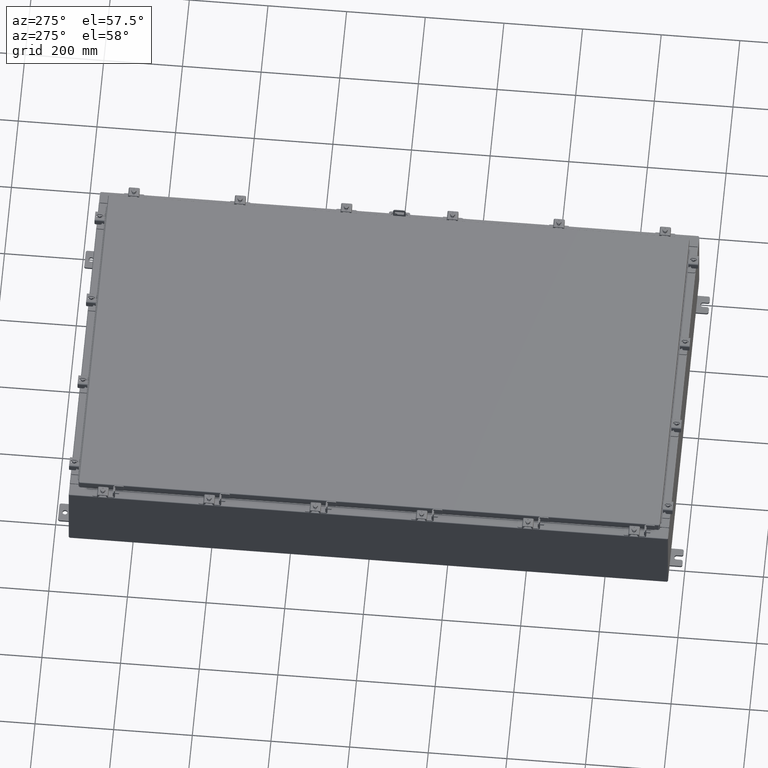
[diagram: clean part render]
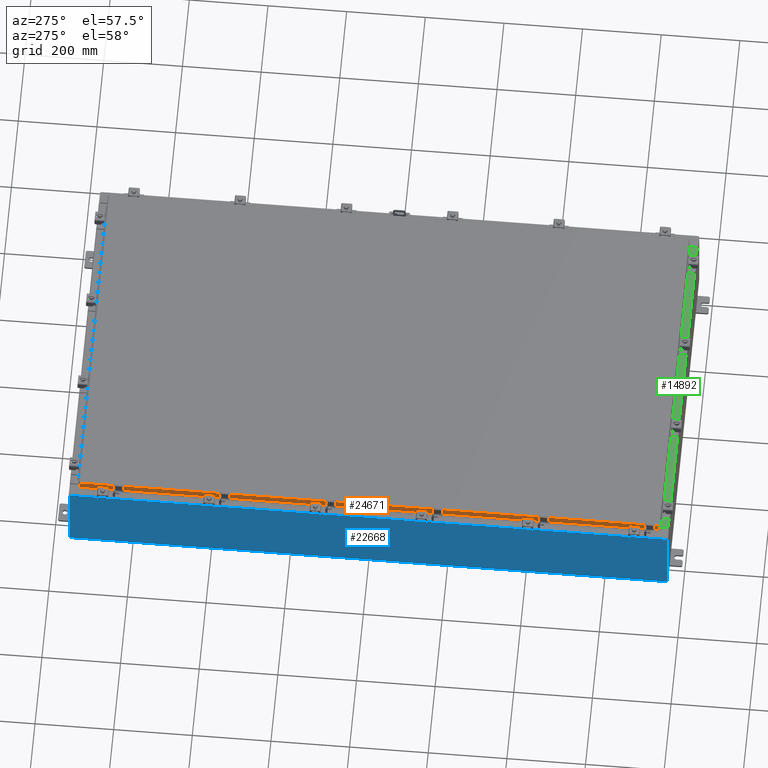
[diagram: same view with three faces highlighted in distinct colors, each labeled with its STEP entity id]
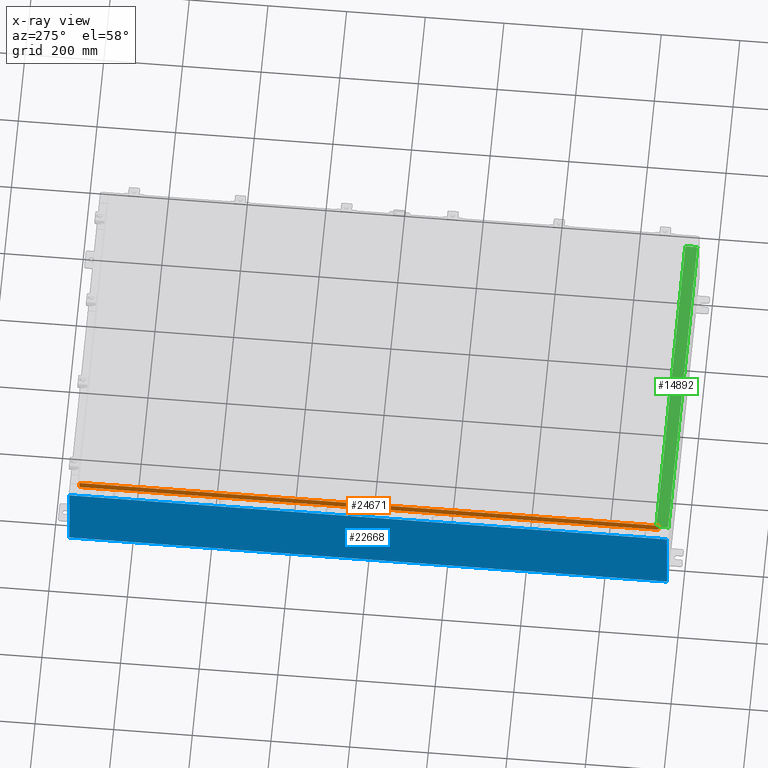
[diagram: x-ray of the same camera — body ghosted, the three highlighted faces saturated]
A machine part, auxiliary view with three faces highlighted in distinct colors.
The next image is the same camera in x-ray (body ghosted, the three faces saturated) — at least one of them is partly hidden behind the body in this view.
Their STEP definitions:

[orange] entity #24671 — the highlighted planar face has unit normal (1, 0, -0).
#21 = DIRECTION ( 'NONE',  ( -2.818880942772360100E-015, 6.982962677686265900E-015, -1.000000000000000000 ) ) ;
#1588 = VECTOR ( 'NONE', #20979, 39.37007874015748100 ) ;
#1671 = EDGE_CURVE ( 'NONE', #1949, #6886, #23423, .T. ) ;
#1757 = DIRECTION ( 'NONE',  ( 3.374737631835139200E-031, -1.000000000000000000, -9.198750492177080800E-046 ) ) ;
#1949 = VERTEX_POINT ( 'NONE', #14503 ) ;
#3059 = VERTEX_POINT ( 'NONE', #3253 ) ;
#3161 = VERTEX_POINT ( 'NONE', #5395 ) ;
#3253 = CARTESIAN_POINT ( 'NONE',  ( -17.07799999999999900, -29.00515786437626500, -0.8499999999999996400 ) ) ;
#3296 = CARTESIAN_POINT ( 'NONE',  ( -17.07799999999999900, -29.09400000000000500, -0.8499999999999996400 ) ) ;
#4090 = PLANE ( 'NONE',  #20455 ) ;
#4351 = VECTOR ( 'NONE', #11782, 39.37007874015748100 ) ;
#5395 = CARTESIAN_POINT ( 'NONE',  ( -17.07799999999999600, 29.00515786437626500, -0.08770000000000007000 ) ) ;
#6219 = DIRECTION ( 'NONE',  ( 1.000000000000000000, 3.374737631835138300E-031, -2.818880942772360100E-015 ) ) ;
#6886 = VERTEX_POINT ( 'NONE', #22488 ) ;
#7268 = LINE ( 'NONE', #23058, #23653 ) ;
#9226 = EDGE_CURVE ( 'NONE', #12845, #3059, #7268, .T. ) ;
#9669 = LINE ( 'NONE', #12368, #19007 ) ;
#9878 = ORIENTED_EDGE ( 'NONE', *, *, #16872, .F. ) ;
#10652 = EDGE_LOOP ( 'NONE', ( #15807, #16085, #9878, #14614, #15200, #24121 ) ) ;
#10927 = LINE ( 'NONE', #23140, #1588 ) ;
#11390 = LINE ( 'NONE', #3296, #4351 ) ;
#11782 = DIRECTION ( 'NONE',  ( 4.379057701015054300E-047, 1.000000000000000000, 1.197190551977018000E-016 ) ) ;
#12030 = CARTESIAN_POINT ( 'NONE',  ( -17.07799999999999900, 29.00515786437627200, -0.8499999999999927600 ) ) ;
#12090 = EDGE_CURVE ( 'NONE', #3161, #22576, #10927, .T. ) ;
#12368 = CARTESIAN_POINT ( 'NONE',  ( -17.07799999999999600, -29.09400000000000500, -0.08770000000000007000 ) ) ;
#12845 = VERTEX_POINT ( 'NONE', #27508 ) ;
#14503 = CARTESIAN_POINT ( 'NONE',  ( -17.07799999999998500, -28.25515786437626500, -0.8500000000000017500 ) ) ;
#14614 = ORIENTED_EDGE ( 'NONE', *, *, #1671, .F. ) ;
#15200 = ORIENTED_EDGE ( 'NONE', *, *, #20308, .F. ) ;
#15785 = CARTESIAN_POINT ( 'NONE',  ( -17.07799999999999900, -29.09400000000000500, -0.8499999999999996400 ) ) ;
#15807 = ORIENTED_EDGE ( 'NONE', *, *, #25294, .F. ) ;
#16085 = ORIENTED_EDGE ( 'NONE', *, *, #12090, .T. ) ;
#16872 = EDGE_CURVE ( 'NONE', #6886, #22576, #11390, .T. ) ;
#17319 = FACE_OUTER_BOUND ( 'NONE', #10652, .T. ) ;
#17682 = VECTOR ( 'NONE', #25455, 39.37007874015748100 ) ;
#17931 = DIRECTION ( 'NONE',  ( 4.379057701015054300E-047, 1.000000000000000000, 1.197190551977018000E-016 ) ) ;
#19007 = VECTOR ( 'NONE', #1757, 39.37007874015748100 ) ;
#20308 = EDGE_CURVE ( 'NONE', #3059, #1949, #21571, .T. ) ;
#20455 = AXIS2_PLACEMENT_3D ( 'NONE', #25374, #6219, #21185 ) ;
#20979 = DIRECTION ( 'NONE',  ( -2.818880942772360100E-015, 6.982962677686265900E-015, -1.000000000000000000 ) ) ;
#21185 = DIRECTION ( 'NONE',  ( -2.818880942772360100E-015, 0.0000000000000000000, -1.000000000000000000 ) ) ;
#21571 = LINE ( 'NONE', #15785, #26583 ) ;
#22488 = CARTESIAN_POINT ( 'NONE',  ( -17.07799999999998500, 28.25515786437626500, -0.8500000000000017500 ) ) ;
#22576 = VERTEX_POINT ( 'NONE', #12030 ) ;
#23058 = CARTESIAN_POINT ( 'NONE',  ( -17.07799999999999600, -29.00515786437627200, -0.07469999999999978000 ) ) ;
#23140 = CARTESIAN_POINT ( 'NONE',  ( -17.07799999999999600, 29.00515786437626500, 2.509435972240157400E-013 ) ) ;
#23423 = LINE ( 'NONE', #25557, #17682 ) ;
#23653 = VECTOR ( 'NONE', #21, 39.37007874015748100 ) ;
#24121 = ORIENTED_EDGE ( 'NONE', *, *, #9226, .F. ) ;
#24671 = ADVANCED_FACE ( 'NONE', ( #17319 ), #4090, .F. ) ;
#25294 = EDGE_CURVE ( 'NONE', #3161, #12845, #9669, .T. ) ;
#25374 = CARTESIAN_POINT ( 'NONE',  ( -17.07799999999999600, -5.763376927648048400E-030, 4.840166239667793400E-014 ) ) ;
#25455 = DIRECTION ( 'NONE',  ( -0.0000000000000000000, 1.000000000000000000, -0.0000000000000000000 ) ) ;
#25557 = CARTESIAN_POINT ( 'NONE',  ( -17.07799999999998500, -28.25515786437626500, -0.8500000000000017500 ) ) ;
#26583 = VECTOR ( 'NONE', #17931, 39.37007874015748100 ) ;
#27508 = CARTESIAN_POINT ( 'NONE',  ( -17.07799999999999600, -29.00515786437627600, -0.08770000000000007000 ) ) ;

[blue] entity #22668 — the highlighted planar face has unit normal (1, 0, 0).
#1116 = FACE_OUTER_BOUND ( 'NONE', #22545, .T. ) ;
#1166 = CARTESIAN_POINT ( 'NONE',  ( -18.00000000000002800, -29.92530000000001100, 7.837599999999999200 ) ) ;
#1844 = ORIENTED_EDGE ( 'NONE', *, *, #10515, .F. ) ;
#2902 = ORIENTED_EDGE ( 'NONE', *, *, #17956, .T. ) ;
#4613 = CARTESIAN_POINT ( 'NONE',  ( -18.00000000000000400, -29.92530000000001100, -6.478858477053724100E-014 ) ) ;
#4848 = CARTESIAN_POINT ( 'NONE',  ( -18.00000000000000400, 29.92529999999998900, -6.478858477053724100E-014 ) ) ;
#5026 = AXIS2_PLACEMENT_3D ( 'NONE', #8506, #10664, #25574 ) ;
#5775 = VECTOR ( 'NONE', #23869, 39.37007874015748100 ) ;
#7989 = VECTOR ( 'NONE', #23856, 39.37007874015748100 ) ;
#8311 = LINE ( 'NONE', #11453, #18993 ) ;
#8419 = ORIENTED_EDGE ( 'NONE', *, *, #20867, .T. ) ;
#8506 = CARTESIAN_POINT ( 'NONE',  ( -18.00000000000000400, 0.0000000000000000000, -6.478858477053724100E-014 ) ) ;
#8919 = CARTESIAN_POINT ( 'NONE',  ( -18.00000000000002800, -29.92530000000001800, 7.837599999999999200 ) ) ;
#9535 = LINE ( 'NONE', #4848, #26551 ) ;
#9784 = VERTEX_POINT ( 'NONE', #22861 ) ;
#10515 = EDGE_CURVE ( 'NONE', #9784, #19353, #8311, .T. ) ;
#10664 = DIRECTION ( 'NONE',  ( 1.000000000000000000, 0.0000000000000000000, 3.584876173029202900E-015 ) ) ;
#11453 = CARTESIAN_POINT ( 'NONE',  ( -18.00000000000000400, 29.92529999999998900, 0.01299999999999984700 ) ) ;
#12125 = CARTESIAN_POINT ( 'NONE',  ( -18.00000000000003200, 29.92529999999998900, 7.837599999999999200 ) ) ;
#14200 = EDGE_CURVE ( 'NONE', #9784, #22506, #17771, .T. ) ;
#14985 = CARTESIAN_POINT ( 'NONE',  ( -18.00000000000000400, 29.92529999999998600, 0.01299999999999983600 ) ) ;
#16399 = ORIENTED_EDGE ( 'NONE', *, *, #14200, .T. ) ;
#17771 = LINE ( 'NONE', #4613, #5775 ) ;
#17956 = EDGE_CURVE ( 'NONE', #22506, #18460, #19332, .T. ) ;
#18460 = VERTEX_POINT ( 'NONE', #12125 ) ;
#18993 = VECTOR ( 'NONE', #19896, 39.37007874015748100 ) ;
#19332 = LINE ( 'NONE', #8919, #7989 ) ;
#19353 = VERTEX_POINT ( 'NONE', #14985 ) ;
#19781 = DIRECTION ( 'NONE',  ( 3.584876173029202900E-015, 0.0000000000000000000, -1.000000000000000000 ) ) ;
#19896 = DIRECTION ( 'NONE',  ( -0.0000000000000000000, 1.000000000000000000, -0.0000000000000000000 ) ) ;
#20867 = EDGE_CURVE ( 'NONE', #18460, #19353, #9535, .T. ) ;
#21294 = PLANE ( 'NONE',  #5026 ) ;
#22506 = VERTEX_POINT ( 'NONE', #1166 ) ;
#22545 = EDGE_LOOP ( 'NONE', ( #2902, #8419, #1844, #16399 ) ) ;
#22668 = ADVANCED_FACE ( 'NONE', ( #1116 ), #21294, .F. ) ;
#22861 = CARTESIAN_POINT ( 'NONE',  ( -18.00000000000000400, -29.92530000000001100, 0.01299999999999984700 ) ) ;
#23856 = DIRECTION ( 'NONE',  ( 0.0000000000000000000, 1.000000000000000000, 0.0000000000000000000 ) ) ;
#23869 = DIRECTION ( 'NONE',  ( -3.584876173029202900E-015, 0.0000000000000000000, 1.000000000000000000 ) ) ;
#25574 = DIRECTION ( 'NONE',  ( 3.584876173029202900E-015, 0.0000000000000000000, -1.000000000000000000 ) ) ;
#26551 = VECTOR ( 'NONE', #19781, 39.37007874015748100 ) ;

[green] entity #14892 — the highlighted planar face has unit normal (-0, -0, 1).
#1083 = EDGE_CURVE ( 'NONE', #5114, #26382, #8422, .T. ) ;
#1466 = DIRECTION ( 'NONE',  ( 0.0000000000000000000, 3.566381192773190000E-015, 1.000000000000000000 ) ) ;
#2481 = EDGE_LOOP ( 'NONE', ( #5427, #11647, #19175, #26151 ) ) ;
#2484 = CARTESIAN_POINT ( 'NONE',  ( -2.880088825576348200E-018, -0.08769999999999972300, 4.000000000000000900 ) ) ;
#3090 = FACE_OUTER_BOUND ( 'NONE', #2481, .T. ) ;
#3365 = AXIS2_PLACEMENT_3D ( 'NONE', #24874, #1466, #16321 ) ;
#4120 = DIRECTION ( 'NONE',  ( -1.000000000000000000, 0.0000000000000000000, 0.0000000000000000000 ) ) ;
#4501 = CARTESIAN_POINT ( 'NONE',  ( -16.63719999999999600, -1.287299999999999200, 4.000000000000004400 ) ) ;
#4588 = DIRECTION ( 'NONE',  ( -0.0000000000000000000, -1.000000000000000000, 3.566381192773190000E-015 ) ) ;
#5114 = VERTEX_POINT ( 'NONE', #8308 ) ;
#5427 = ORIENTED_EDGE ( 'NONE', *, *, #12767, .F. ) ;
#5833 = VECTOR ( 'NONE', #6719, 39.37007874015748100 ) ;
#6501 = LINE ( 'NONE', #2484, #5833 ) ;
#6719 = DIRECTION ( 'NONE',  ( -1.000000000000000000, 3.284023746380717400E-017, -1.171208052571274300E-031 ) ) ;
#7133 = CARTESIAN_POINT ( 'NONE',  ( 16.63720000000000400, -1.300299999999999800, 4.000000000000004400 ) ) ;
#7780 = PLANE ( 'NONE',  #3365 ) ;
#8272 = VECTOR ( 'NONE', #4120, 39.37007874015748100 ) ;
#8308 = CARTESIAN_POINT ( 'NONE',  ( 16.63720000000000700, -0.08769999999999937600, 4.000000000000000900 ) ) ;
#8422 = LINE ( 'NONE', #7133, #19091 ) ;
#10698 = VERTEX_POINT ( 'NONE', #12083 ) ;
#11647 = ORIENTED_EDGE ( 'NONE', *, *, #19279, .F. ) ;
#12083 = CARTESIAN_POINT ( 'NONE',  ( -16.63719999999999600, -0.08769999999999972300, 4.000000000000000900 ) ) ;
#12767 = EDGE_CURVE ( 'NONE', #20800, #10698, #15162, .T. ) ;
#13236 = LINE ( 'NONE', #14823, #8272 ) ;
#14823 = CARTESIAN_POINT ( 'NONE',  ( 16.63720000000000700, -1.287299999999999900, 4.000000000000004400 ) ) ;
#14892 = ADVANCED_FACE ( 'NONE', ( #3090 ), #7780, .T. ) ;
#15162 = LINE ( 'NONE', #20947, #20190 ) ;
#16321 = DIRECTION ( 'NONE',  ( 0.0000000000000000000, -1.000000000000000000, 3.566381192773190000E-015 ) ) ;
#17917 = CARTESIAN_POINT ( 'NONE',  ( 16.63720000000000400, -1.287299999999999900, 4.000000000000004400 ) ) ;
#19091 = VECTOR ( 'NONE', #4588, 39.37007874015748100 ) ;
#19175 = ORIENTED_EDGE ( 'NONE', *, *, #1083, .F. ) ;
#19279 = EDGE_CURVE ( 'NONE', #26382, #20800, #13236, .T. ) ;
#20190 = VECTOR ( 'NONE', #23101, 39.37007874015748100 ) ;
#20800 = VERTEX_POINT ( 'NONE', #4501 ) ;
#20813 = EDGE_CURVE ( 'NONE', #5114, #10698, #6501, .T. ) ;
#20947 = CARTESIAN_POINT ( 'NONE',  ( -16.63719999999999600, -0.07469999999999973900, 4.000000000000000900 ) ) ;
#23101 = DIRECTION ( 'NONE',  ( -0.0000000000000000000, 1.000000000000000000, -3.566381192773190000E-015 ) ) ;
#24874 = CARTESIAN_POINT ( 'NONE',  ( 0.0000000000000000000, 1.425992975200418500E-014, 4.000000000000000900 ) ) ;
#26151 = ORIENTED_EDGE ( 'NONE', *, *, #20813, .T. ) ;
#26382 = VERTEX_POINT ( 'NONE', #17917 ) ;